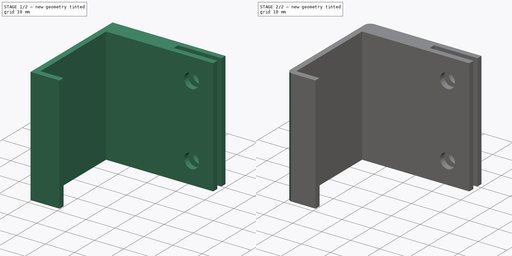
[diagram: build sequence overview — one tinted view per stage of 2, left to right]
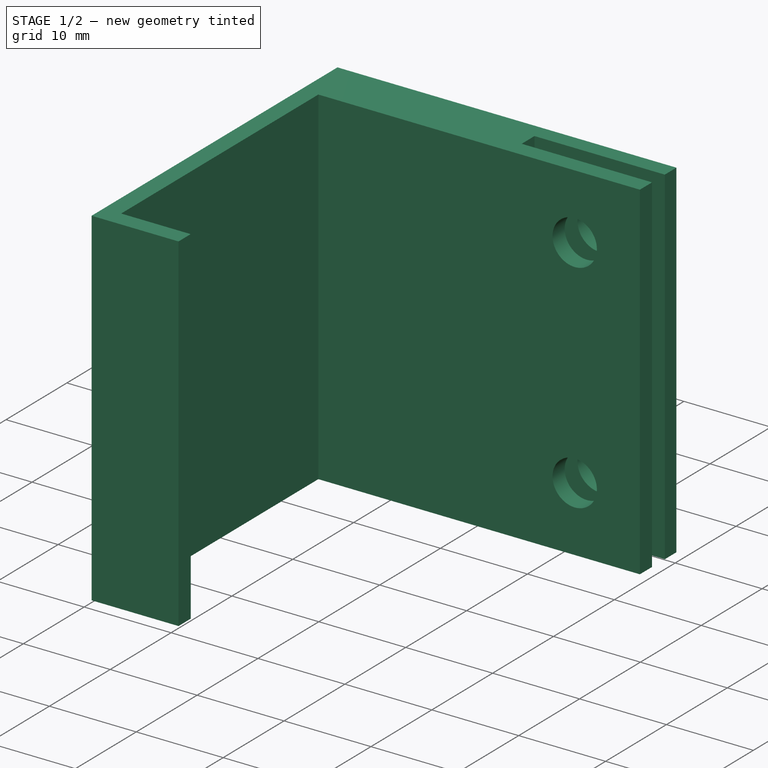
[diagram: stage 1 of 2 — iso view after this stage's code; geometry added in this stage tinted green]
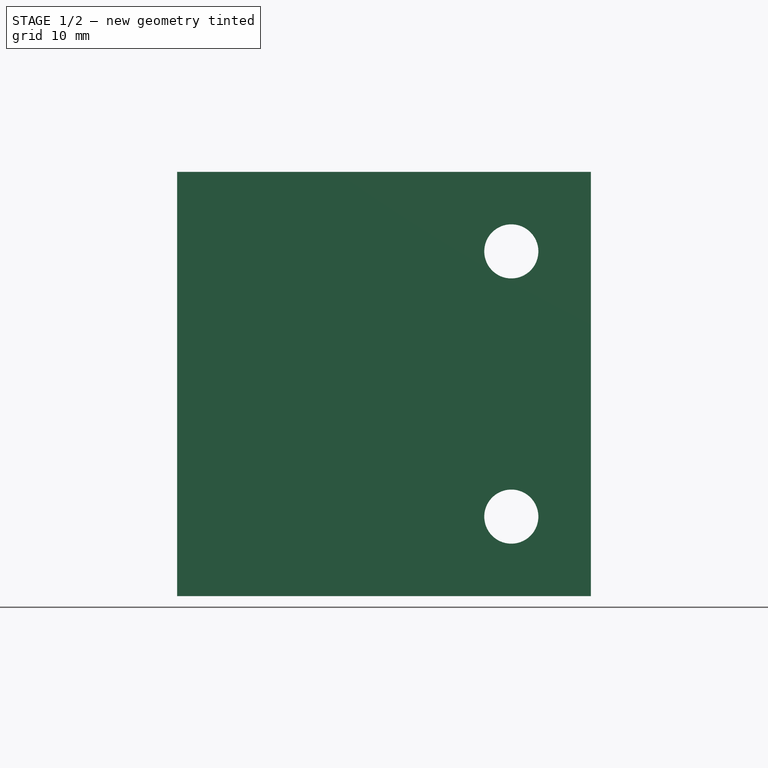
[diagram: stage 1 of 2 — front view after this stage's code; geometry added in this stage tinted green]
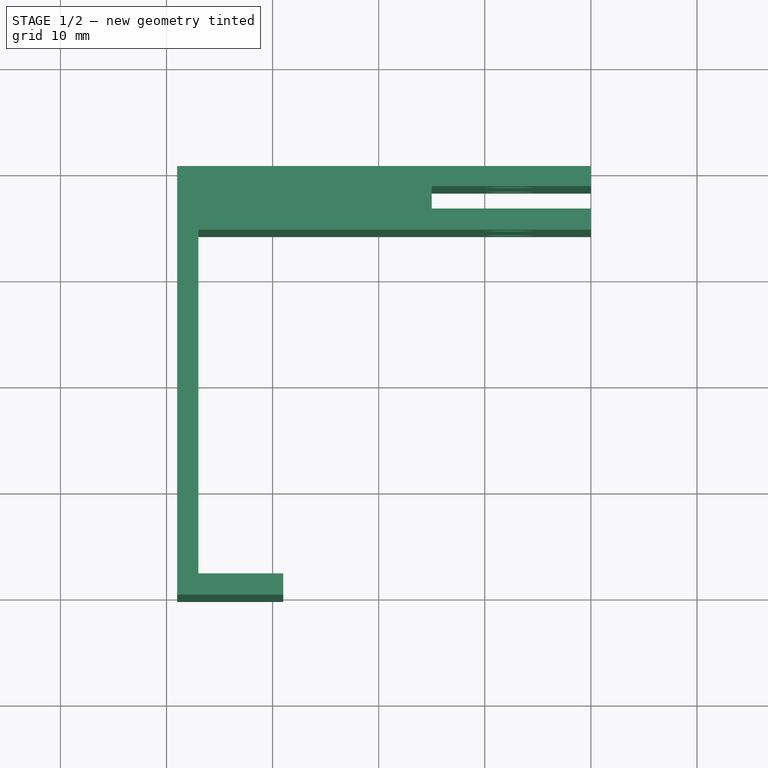
[diagram: stage 1 of 2 — top view after this stage's code; geometry added in this stage tinted green]
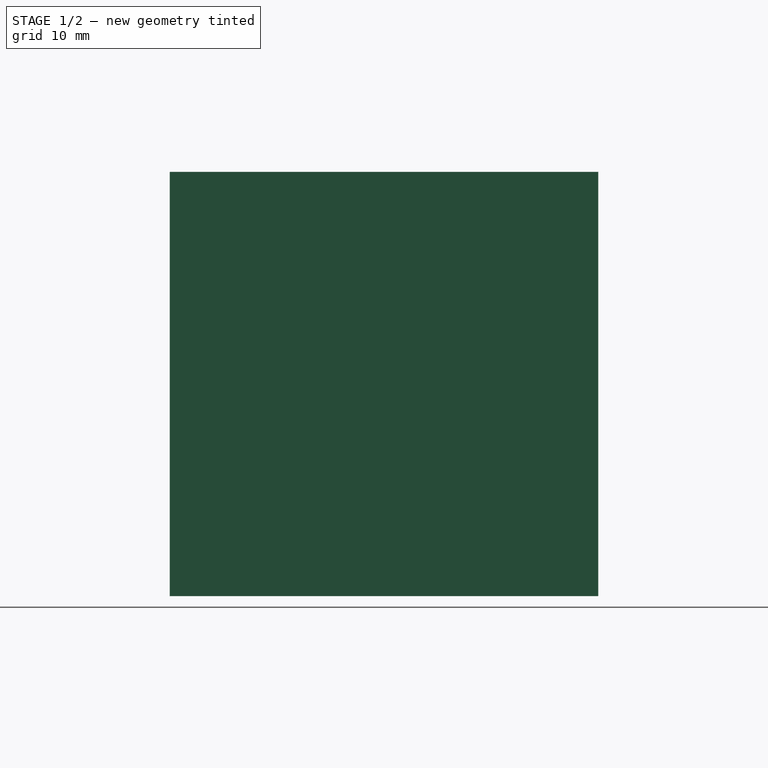
[diagram: stage 1 of 2 — right view after this stage's code; geometry added in this stage tinted green]
FCSTD DOCUMENT  (FreeCAD 0.20R29410 (Git))
Label: Franz Cell Stand Side
License: All rights reserved
LicenseURL: http://en.wikipedia.org/wiki/All_rights_reserved
objects: Sketcher::SketchObject×2, PartDesign::Pad×1, PartDesign::Pocket×1, PartDesign::Fillet×1, PartDesign::Body×1
note: 9 computed .brp shape members not serialized (recipe doc carries the construction recipe); baked Part::Feature solids carry a one-line shape summary decoded from their .brp

FEATURE [Sketcher::SketchObject] Sketch
  FullyConstrained = true
  MapMode = 5
  Support = -> [XY_Plane]
  sketch-geometry (12):
    g0: LineSegment StartX=-39 StartY=20.2 StartZ=0 EndX=0 EndY=20.2 EndZ=0
    g1: LineSegment StartX=0 StartY=14.2 StartZ=0 EndX=-37 EndY=14.2 EndZ=0
    g2: LineSegment StartX=-37 StartY=14.2 StartZ=0 EndX=-37 EndY=-18.2 EndZ=0
    g3: LineSegment StartX=-37 StartY=-18.2 StartZ=0 EndX=-29 EndY=-18.2 EndZ=0
    g4: LineSegment StartX=-29 StartY=-18.2 StartZ=0 EndX=-29 EndY=-20.2 EndZ=0
    g5: LineSegment StartX=-39 StartY=-20.2 StartZ=0 EndX=-39 EndY=20.2 EndZ=0
    g6: LineSegment StartX=0 StartY=20.2 StartZ=0 EndX=0 EndY=18.3 EndZ=0
    g7: LineSegment StartX=-15 StartY=18.3 StartZ=0 EndX=0 EndY=18.3 EndZ=0
    g8: LineSegment StartX=-15 StartY=18.3 StartZ=0 EndX=-15 EndY=16.2 EndZ=0
    g9: LineSegment StartX=-15 StartY=16.2 StartZ=0 EndX=0 EndY=16.2 EndZ=0
    g10: LineSegment StartX=0 StartY=16.2 StartZ=0 EndX=0 EndY=14.2 EndZ=0
    g11: LineSegment StartX=-39 StartY=-20.2 StartZ=0 EndX=-29 EndY=-20.2 EndZ=0
  constraints (35):
    c: Horizontal(g0)
    c: Horizontal(g1)
    c: Vertical(g2)
    c: Horizontal(g3)
    c: Vertical(g4)
    c: Coincident(g5,g0)
    c: Coincident(g4,g3)
    c: Coincident(g1,g2)
    c: Coincident(g3,g2)
    c: DistanceY(g2,g2) = 32.4
    c: DistanceY(g4,g4) = 2
    c: Coincident(g6,g0)
    c: Vertical(g6)
    c: Coincident(g7,g6)
    c: Coincident(g8,g7)
    c: Coincident(g9,g8)
    c: Horizontal(g9)
    c: Coincident(g10,g9)
    c: Coincident(g10,g1)
    c: Vertical(g10)
    c: Vertical(g8)
    c: Horizontal(g7)
    c: DistanceY(g8,g8) = 2.1
    c: DistanceY(g10,g10) = 2
    c: DistanceY(g6,g6) = 1.9
    c: DistanceX(g1,g6) = 0
    c: DistanceX(g1,g1) = 37
    c: DistanceX(g5,g2) = 2
    c: DistanceX(g7,g7) = 15
    c: Symmetric(g0,g5,g-1)
    c: PointOnObject(g1,g-2)
    c: Coincident(g11,g5)
    c: Coincident(g11,g4)
    c: Horizontal(g11)
    c: DistanceX(g11,g11) = 10
FEATURE [PartDesign::Pad] Pad  label="C-Shape"
  Direction = (0,0,1)
  Length = 40
  Length2 = 10
  Midplane = true
  Profile = -> Sketch
  ReferenceAxis = -> Sketch [N_Axis]
  Type = 0
FEATURE [Sketcher::SketchObject] Sketch001
  FullyConstrained = true
  MapMode = 5
  Placement = pos=(0,20.2,0) rot=(0,0.707107,0.707107;3.14159rad)
  Support = -> [Pad]
  sketch-geometry (2):
    g0: Circle CenterX=7.5 CenterY=12.5 CenterZ=0 NormalX=0 NormalY=0 NormalZ=1 AngleXU=0 Radius=2.55
    g1: Circle CenterX=7.5 CenterY=-12.5 CenterZ=0 NormalX=0 NormalY=0 NormalZ=1 AngleXU=0 Radius=2.55
  constraints (5):
    c: DistanceY(g1,g0) = 25
    c: Symmetric(g0,g1,g-1)
    c: DistanceX(g-1,g0) = 7.5
    c: Diameter(g0) = 5.1
    c: Equal(g0,g1)
FEATURE [PartDesign::Pocket] Pocket
  BaseFeature = -> Pad
  Direction = (0,-1,2e-16)
  Length = 5
  Length2 = 5
  Profile = -> Sketch001
  ReferenceAxis = -> Sketch001 [N_Axis]
  Type = 1
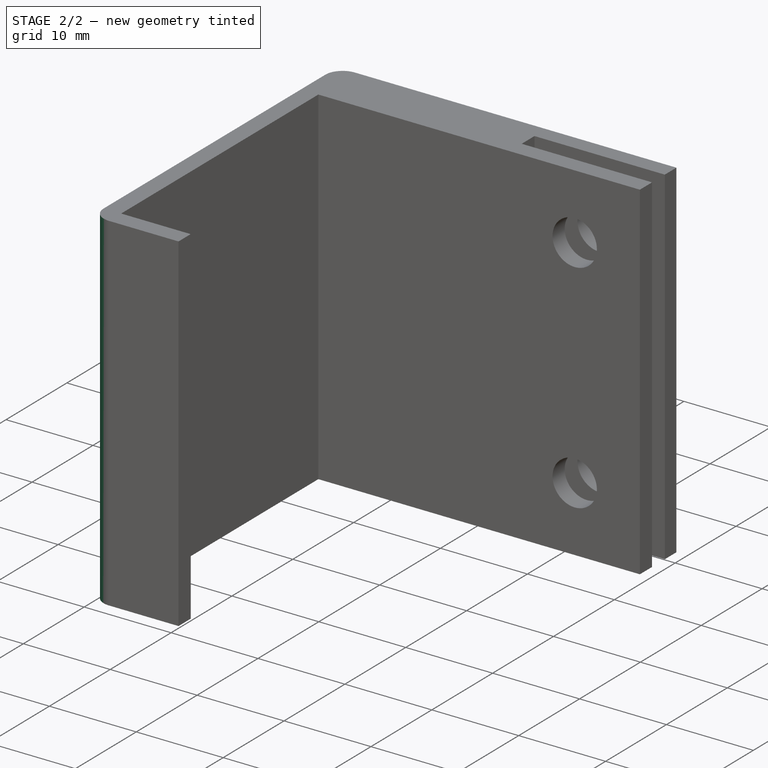
[diagram: stage 2 of 2 — iso view after this stage's code; geometry added in this stage tinted green]
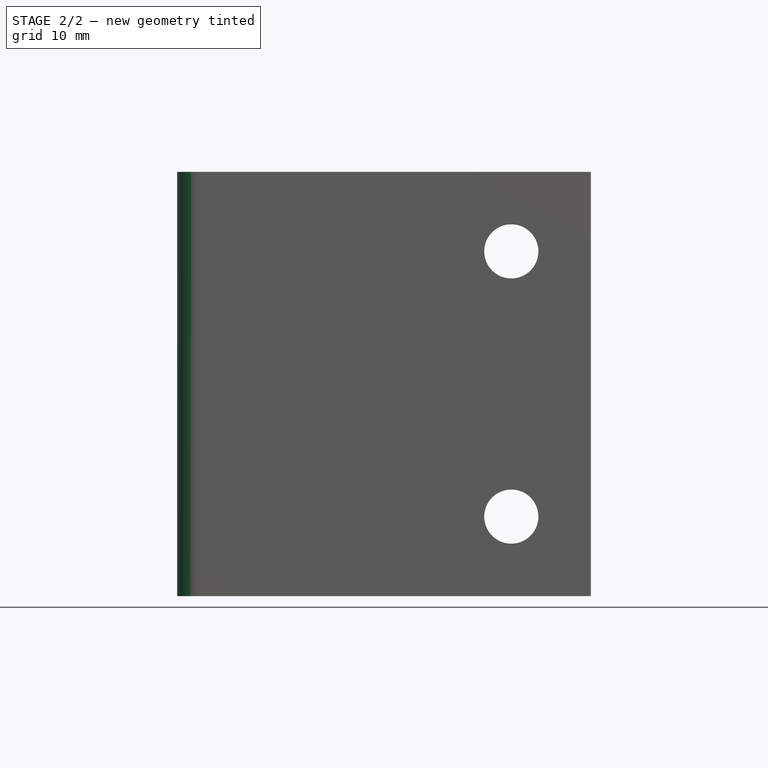
[diagram: stage 2 of 2 — front view after this stage's code; geometry added in this stage tinted green]
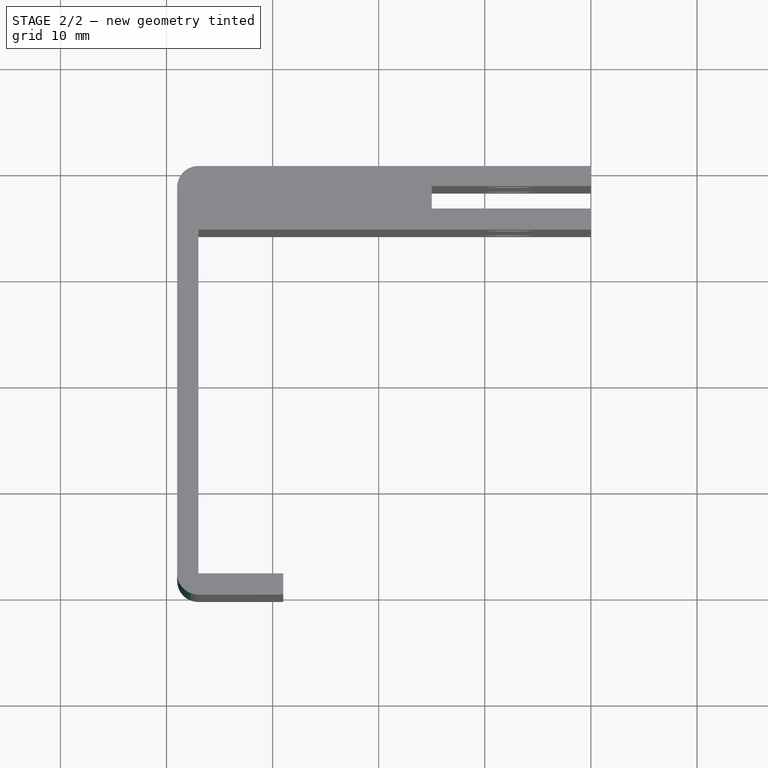
[diagram: stage 2 of 2 — top view after this stage's code; geometry added in this stage tinted green]
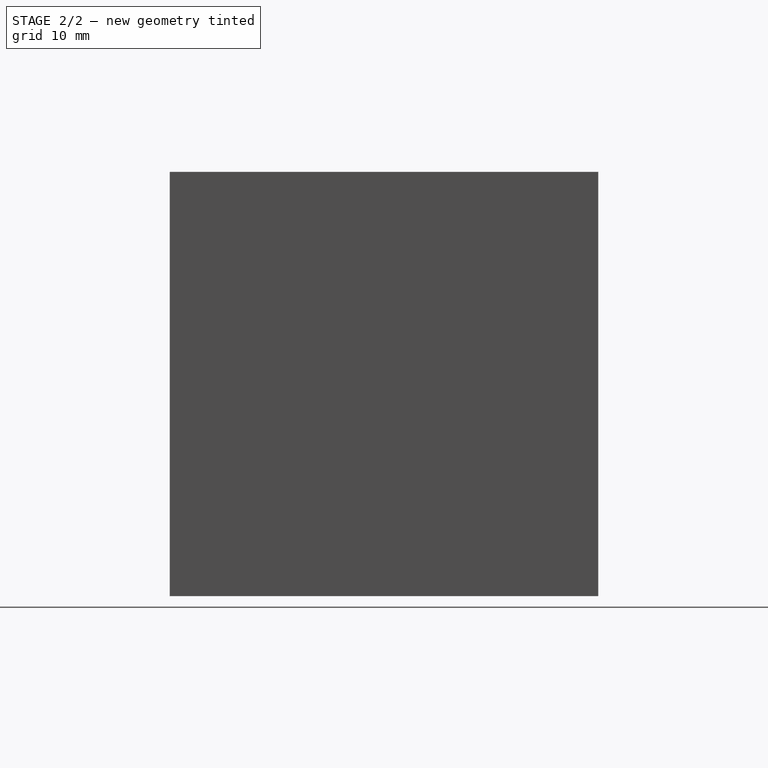
[diagram: stage 2 of 2 — right view after this stage's code; geometry added in this stage tinted green]
FEATURE [PartDesign::Fillet] Fillet
  Base = -> Pocket [Edge2,Edge1]
  BaseFeature = -> Pocket
  Radius = 2
  SupportTransform = false
  UseAllEdges = false
FEATURE [PartDesign::Body] Body
  Group = -> [Sketch,Pad,Sketch001,Pocket,Fillet]
  Origin = -> Origin
  Placement = pos=(0,0,0) rot=(0.57735,0.57735,0.57735;4.18879rad)
  Tip = -> Fillet
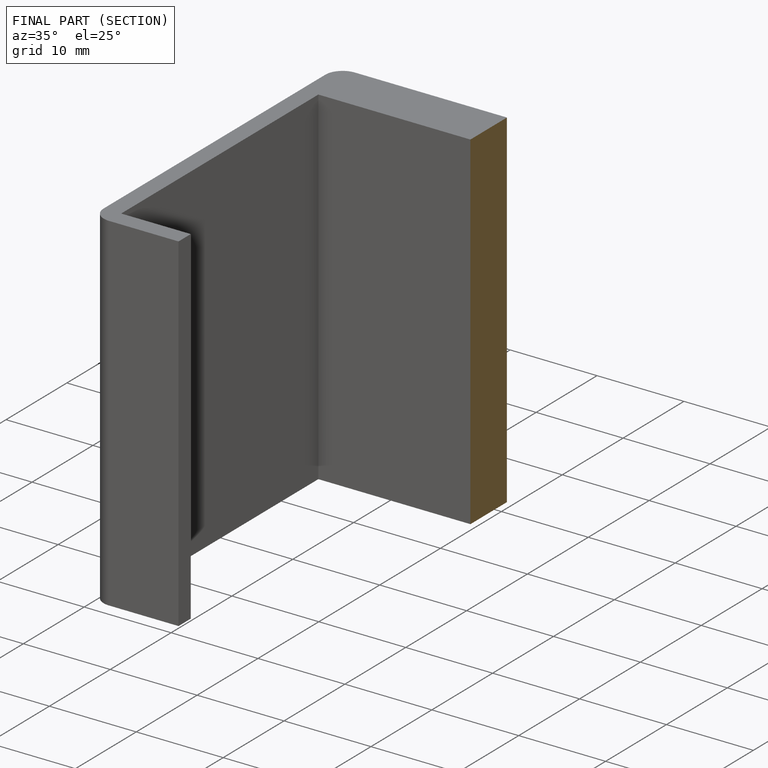
[diagram: finished part — half-section view (interior)]
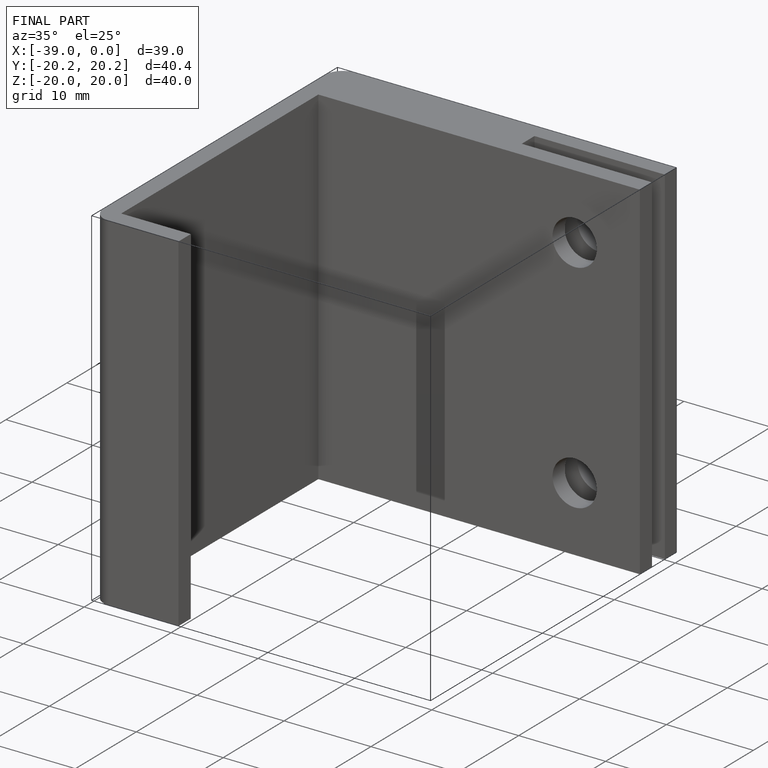
[diagram: finished part — iso view with bounding-box wireframe]
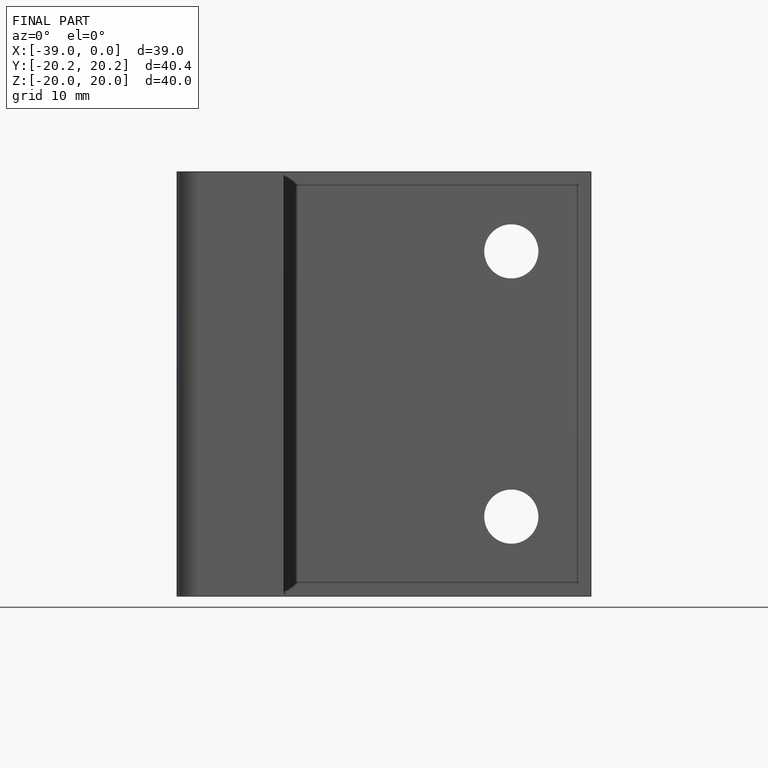
[diagram: finished part — front view with bounding-box wireframe]
